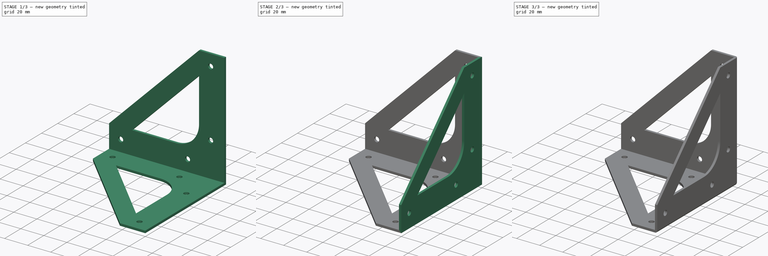
[diagram: build sequence overview — one tinted view per stage of 3, left to right]
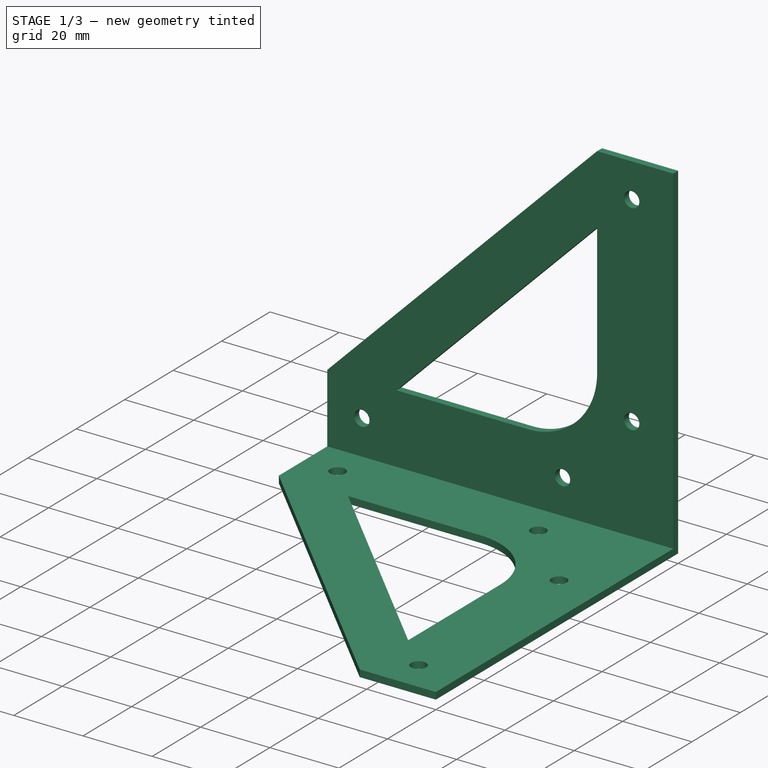
[diagram: stage 1 of 3 — iso view after this stage's code; geometry added in this stage tinted green]
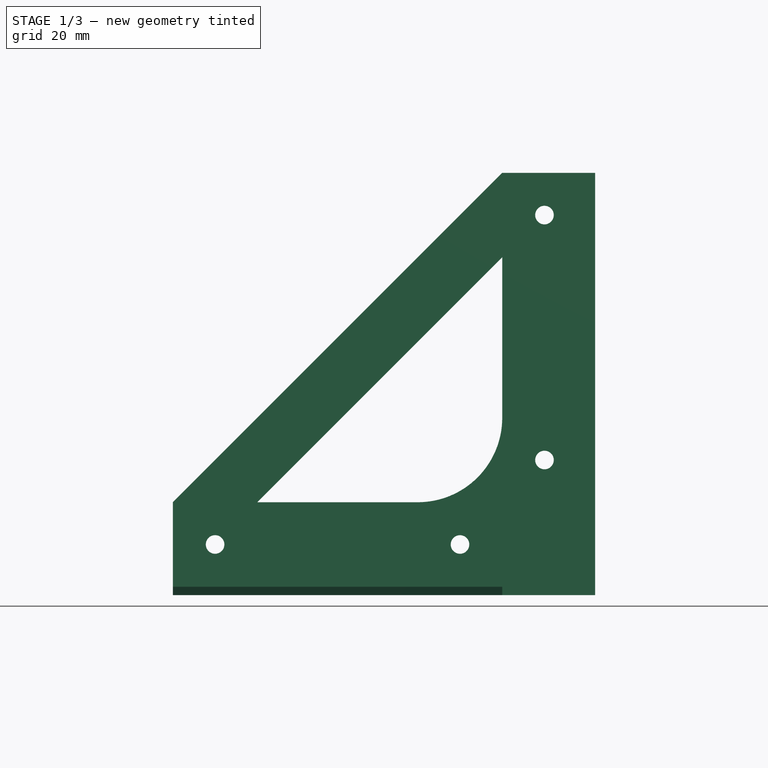
[diagram: stage 1 of 3 — front view after this stage's code; geometry added in this stage tinted green]
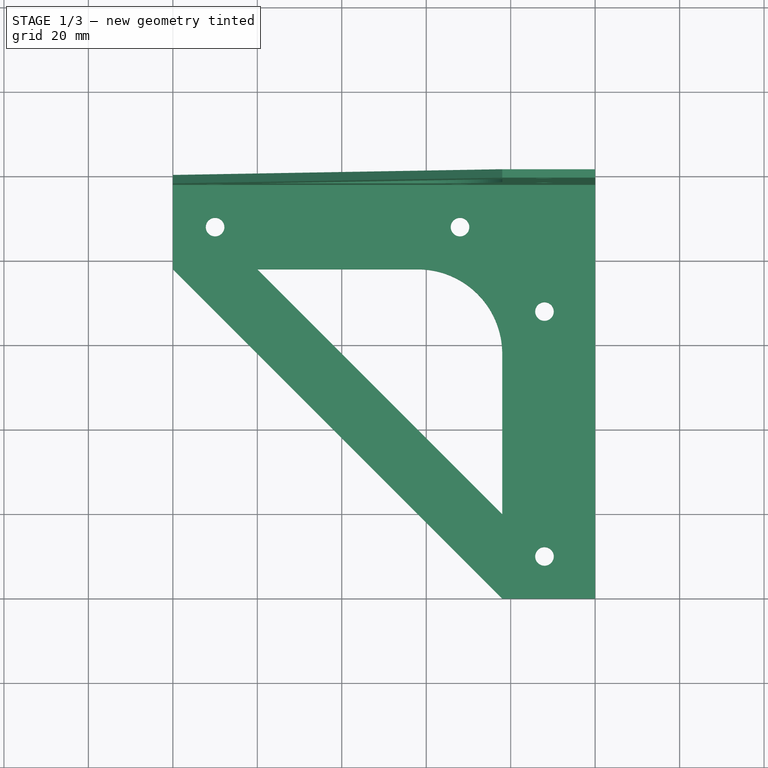
[diagram: stage 1 of 3 — top view after this stage's code; geometry added in this stage tinted green]
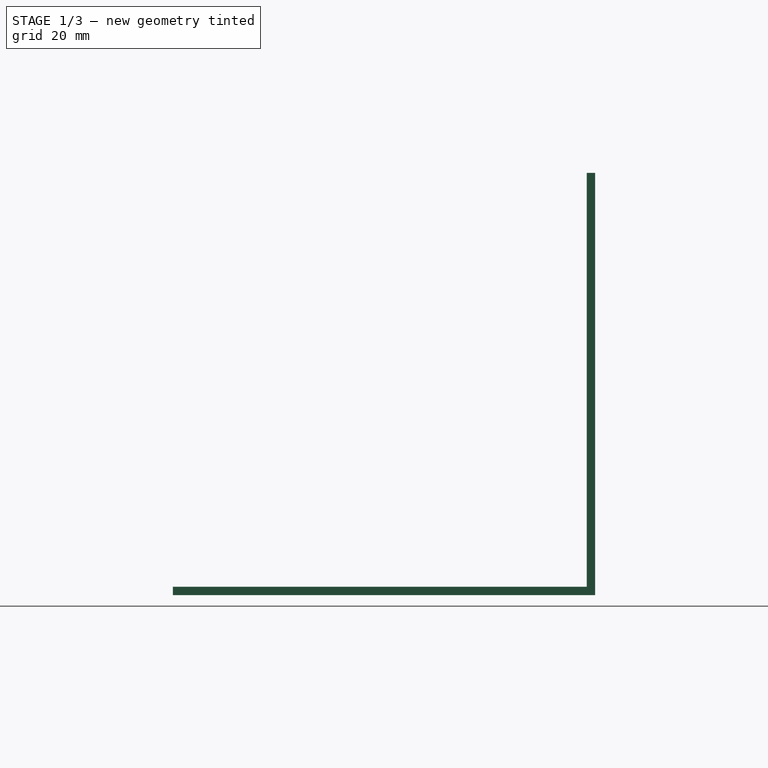
[diagram: stage 1 of 3 — right view after this stage's code; geometry added in this stage tinted green]
FCSTD DOCUMENT  (FreeCAD 0.17R13541 (Git))
Label: corner
License: All rights reserved
LicenseURL: http://en.wikipedia.org/wiki/All_rights_reserved
objects: Sketcher::SketchObject×3, PartDesign::Pad×3, PartDesign::Body×2, Part::MultiFuse×1, PartDesign::FeatureBase×1, PartDesign::Fillet×1
note: 14 computed .brp shape members not serialized (recipe doc carries the construction recipe); baked Part::Feature solids carry a one-line shape summary decoded from their .brp

FEATURE [Sketcher::SketchObject] Sketch
  MapMode = 5
  Support = -> [XY_Plane]
  sketch-geometry (31):
    g0: LineSegment StartX=0 StartY=0 StartZ=0 EndX=-100 EndY=0 EndZ=0
    g1: LineSegment StartX=0 StartY=-100 StartZ=0 EndX=0 EndY=0 EndZ=0
    g2: LineSegment StartX=-100 StartY=-22 StartZ=0 EndX=-22 EndY=-100 EndZ=0
    g3: LineSegment [constr] StartX=-100 StartY=-2 StartZ=0 EndX=-2 EndY=-2 EndZ=0
    g4: LineSegment [constr] StartX=-2 StartY=-100 StartZ=0 EndX=-2 EndY=-2 EndZ=0
    g5: LineSegment [constr] StartX=-2 StartY=-2 StartZ=0 EndX=-2 EndY=0 EndZ=0
    g6: LineSegment [constr] StartX=-2 StartY=-2 StartZ=0 EndX=0 EndY=-2 EndZ=0
    g7: LineSegment [constr] StartX=-90 StartY=-12 StartZ=0 EndX=-32 EndY=-12 EndZ=0
    g8: LineSegment [constr] StartX=-12 StartY=-90 StartZ=0 EndX=-12 EndY=-32 EndZ=0
    g9: Circle CenterX=-90 CenterY=-12 CenterZ=0 NormalX=0 NormalY=0 NormalZ=1 AngleXU=0 Radius=2.2
    g10: LineSegment [constr] StartX=-100 StartY=-12 StartZ=0 EndX=-90 EndY=-12 EndZ=0
    g11: LineSegment [constr] StartX=-12 StartY=-90 StartZ=0 EndX=-12 EndY=-100 EndZ=0
    g12: Circle CenterX=-12 CenterY=-90 CenterZ=0 NormalX=0 NormalY=0 NormalZ=1 AngleXU=0 Radius=2.2
    g13: Circle CenterX=-32 CenterY=-12 CenterZ=0 NormalX=0 NormalY=0 NormalZ=1 AngleXU=0 Radius=2.2
    g14: Circle CenterX=-12 CenterY=-32 CenterZ=0 NormalX=0 NormalY=0 NormalZ=1 AngleXU=0 Radius=2.2
    g15: LineSegment [constr] StartX=-32 StartY=-12 StartZ=0 EndX=-12 EndY=-12 EndZ=0
    g16: LineSegment [constr] StartX=-12 StartY=-12 StartZ=0 EndX=-2 EndY=-12 EndZ=0
    g17: LineSegment [constr] StartX=-12 StartY=-32 StartZ=0 EndX=-12 EndY=-12 EndZ=0
    g18: LineSegment [constr] StartX=-12 StartY=-12 StartZ=0 EndX=-12 EndY=-2 EndZ=0
    g19: LineSegment StartX=-80 StartY=-22 StartZ=0 EndX=-22 EndY=-80 EndZ=0
    g20: LineSegment StartX=-22 StartY=-80 StartZ=0 EndX=-22 EndY=-42 EndZ=0
    g21: LineSegment StartX=-42 StartY=-22 StartZ=0 EndX=-80 EndY=-22 EndZ=0
    g22: LineSegment [constr] StartX=-100 StartY=-22 StartZ=0 EndX=-80 EndY=-22 EndZ=0
    g23: LineSegment [constr] StartX=-22 StartY=-100 StartZ=0 EndX=-22 EndY=-80 EndZ=0
    g24: ArcOfCircle CenterX=-42 CenterY=-42 CenterZ=0 NormalX=0 NormalY=0 NormalZ=1 AngleXU=0 Radius=20 StartAngle=0 EndAngle=1.5708
    g25: LineSegment [constr] StartX=-42 StartY=-22 StartZ=0 EndX=-42 EndY=-42 EndZ=0
    g26: LineSegment [constr] StartX=-42 StartY=-42 StartZ=0 EndX=-22 EndY=-42 EndZ=0
    g27: LineSegment StartX=-100 StartY=0 StartZ=0 EndX=-100 EndY=-2 EndZ=0
    g28: LineSegment StartX=-100 StartY=-2 StartZ=0 EndX=-100 EndY=-22 EndZ=0
    g29: LineSegment StartX=-22 StartY=-100 StartZ=0 EndX=-2 EndY=-100 EndZ=0
    g30: LineSegment StartX=-2 StartY=-100 StartZ=0 EndX=0 EndY=-100 EndZ=0
  constraints (84):
    c: Coincident(g-1,g0)
    c: Horizontal(g0)
    c: Coincident(g1,g0)
    c: Vertical(g1)
    c: Equal(g0,g1)
    c: Horizontal(g3)
    c: Vertical(g4)
    c: Coincident(g3,g4)
    c: Coincident(g5,g3)
    c: PointOnObject(g5,g0)
    c: Vertical(g5)
    c: Coincident(g6,g3)
    c: PointOnObject(g6,g1)
    c: Horizontal(g6)
    c: Equal(g5,g6)
    c: DistanceY(g5,g5) = 2  'Thickness'
    c: Horizontal(g7)
    c: Vertical(g8)
    c: Symmetric(g2,g3,g7)
    c: Symmetric(g2,g4,g8)
    c: PointOnObject(g9,g7)
    c: Radius(g9) = 2.2
    c: Coincident(g7,g9)
    c: Coincident(g10,g7)
    c: Horizontal(g10)
    c: DistanceX(g10,g10) = 10  'ScrewDistanceEnd'
    c: Coincident(g11,g8)
    c: Vertical(g11)
    c: Equal(g10,g11)
    c: Coincident(g12,g8)
    c: Equal(g12,g9)
    c: Coincident(g13,g7)
    c: Equal(g13,g9)
    c: Equal(g14,g12)
    c: Coincident(g8,g14)
    c: Coincident(g15,g7)
    c: Horizontal(g15)
    c: Coincident(g16,g15)
    c: PointOnObject(g16,g4)
    c: Horizontal(g16)
    c: Coincident(g17,g8)
    c: Coincident(g17,g15)
    c: Vertical(g17)
    c: Coincident(g18,g15)
    c: PointOnObject(g18,g3)
    c: Vertical(g18)
    c: DistanceX(g15,g15) = 20  'ScrewDistanceMiddle'
    c: Equal(g15,g17)
    c: DistanceX(g0,g5) = 98  'Length'
    c: Coincident(g19,g20)
    c: Vertical(g20)
    c: Coincident(g21,g19)
    c: Horizontal(g21)
    c: Coincident(g22,g19)
    c: Horizontal(g22)
    c: Coincident(g23,g19)
    c: Vertical(g23)
    c: Equal(g22,g23)
    c: Equal(g21,g20)
    c: Coincident(g24,g21)
    c: Coincident(g24,g20)
    c: Coincident(g21,g25)
    c: Coincident(g25,g24)
    c: Vertical(g25)
    c: Coincident(g25,g26)
    c: Coincident(g26,g20)
    c: Radius(g24) = 20
    c: Coincident(g0,g27)
    c: Coincident(g27,g3)
    c: Vertical(g27)
    c: Coincident(g27,g28)
    c: Coincident(g28,g2)
    c: Coincident(g29,g2)
    c: Coincident(g29,g4)
    c: Coincident(g30,g4)
    c: Coincident(g30,g1)
    c: PointOnObject(g11,g29)
    c: Horizontal(g30)
    c: PointOnObject(g10,g28)
    c: Coincident(g2,g23)
    c: Coincident(g2,g22)
    c: Horizontal(g26)
    c: DistanceY(g28,g28) = 20  'ExtrusionSize'
    c: Equal(g28,g22)
FEATURE [PartDesign::Pad] Pad
  Length = 2
  Length2 = 100
  Profile = -> Sketch
  Type = 0
  expr: Length = Sketch.Constraints.Thickness
FEATURE [Sketcher::SketchObject] Sketch001
  AttachmentOffset = pos=(0,0,0) rot=(1,0,0;4.71239rad)
  MapMode = 5
  Placement = pos=(0,0,0) rot=(1,0,0;4.71239rad)
  Support = -> [XY_Plane]
  expr: Constraints[46] = Sketch.Constraints.ScrewDistanceMiddle
  expr: Constraints[25] = Sketch.Constraints.ScrewDistanceEnd
  expr: Constraints[83] = Sketch.Constraints.ExtrusionSize
  expr: Constraints[48] = Sketch.Constraints.Length
  expr: Constraints.Thickness = Sketch.Constraints.Thickness
  sketch-geometry (31):
    g0: LineSegment StartX=0 StartY=0 StartZ=0 EndX=-100 EndY=0 EndZ=0
    g1: LineSegment StartX=0 StartY=-100 StartZ=0 EndX=0 EndY=0 EndZ=0
    g2: LineSegment StartX=-100 StartY=-22 StartZ=0 EndX=-22 EndY=-100 EndZ=0
    g3: LineSegment [constr] StartX=-100 StartY=-2 StartZ=0 EndX=-2 EndY=-2 EndZ=0
    g4: LineSegment [constr] StartX=-2 StartY=-100 StartZ=0 EndX=-2 EndY=-2 EndZ=0
    g5: LineSegment [constr] StartX=-2 StartY=-2 StartZ=0 EndX=-2 EndY=0 EndZ=0
    g6: LineSegment [constr] StartX=-2 StartY=-2 StartZ=0 EndX=0 EndY=-2 EndZ=0
    g7: LineSegment [constr] StartX=-90 StartY=-12 StartZ=0 EndX=-32 EndY=-12 EndZ=0
    g8: LineSegment [constr] StartX=-12 StartY=-90 StartZ=0 EndX=-12 EndY=-32 EndZ=0
    g9: Circle CenterX=-90 CenterY=-12 CenterZ=0 NormalX=0 NormalY=0 NormalZ=1 AngleXU=0 Radius=2.2
    g10: LineSegment [constr] StartX=-100 StartY=-12 StartZ=0 EndX=-90 EndY=-12 EndZ=0
    g11: LineSegment [constr] StartX=-12 StartY=-90 StartZ=0 EndX=-12 EndY=-100 EndZ=0
    g12: Circle CenterX=-12 CenterY=-90 CenterZ=0 NormalX=0 NormalY=0 NormalZ=1 AngleXU=0 Radius=2.2
    g13: Circle CenterX=-32 CenterY=-12 CenterZ=0 NormalX=0 NormalY=0 NormalZ=1 AngleXU=0 Radius=2.2
    g14: Circle CenterX=-12 CenterY=-32 CenterZ=0 NormalX=0 NormalY=0 NormalZ=1 AngleXU=0 Radius=2.2
    g15: LineSegment [constr] StartX=-32 StartY=-12 StartZ=0 EndX=-12 EndY=-12 EndZ=0
    g16: LineSegment [constr] StartX=-12 StartY=-12 StartZ=0 EndX=-2 EndY=-12 EndZ=0
    g17: LineSegment [constr] StartX=-12 StartY=-32 StartZ=0 EndX=-12 EndY=-12 EndZ=0
    g18: LineSegment [constr] StartX=-12 StartY=-12 StartZ=0 EndX=-12 EndY=-2 EndZ=0
    g19: LineSegment [constr] StartX=-100 StartY=-22 StartZ=0 EndX=-80 EndY=-22 EndZ=0
    g20: LineSegment [constr] StartX=-22 StartY=-100 StartZ=0 EndX=-22 EndY=-80 EndZ=0
    g21: LineSegment StartX=-80 StartY=-22 StartZ=0 EndX=-22 EndY=-80 EndZ=0
    g22: LineSegment StartX=-22 StartY=-80 StartZ=0 EndX=-22 EndY=-42 EndZ=0
    g23: LineSegment StartX=-42 StartY=-22 StartZ=0 EndX=-80 EndY=-22 EndZ=0
    g24: ArcOfCircle CenterX=-42 CenterY=-42 CenterZ=0 NormalX=0 NormalY=0 NormalZ=1 AngleXU=0 Radius=20 StartAngle=0 EndAngle=1.5708
    g25: LineSegment [constr] StartX=-42 StartY=-22 StartZ=0 EndX=-42 EndY=-42 EndZ=0
    g26: LineSegment [constr] StartX=-42 StartY=-42 StartZ=0 EndX=-22 EndY=-42 EndZ=0
    g27: LineSegment StartX=-100 StartY=0 StartZ=0 EndX=-100 EndY=-2 EndZ=0
    g28: LineSegment StartX=-100 StartY=-2 StartZ=0 EndX=-100 EndY=-22 EndZ=0
    g29: LineSegment StartX=-22 StartY=-100 StartZ=0 EndX=-2 EndY=-100 EndZ=0
    g30: LineSegment StartX=-2 StartY=-100 StartZ=0 EndX=0 EndY=-100 EndZ=0
  constraints (84):
    c: Coincident(g-1,g0)
    c: Horizontal(g0)
    c: Coincident(g1,g0)
    c: Vertical(g1)
    c: Equal(g0,g1)
    c: Horizontal(g3)
    c: Vertical(g4)
    c: Coincident(g3,g4)
    c: Coincident(g5,g3)
    c: PointOnObject(g5,g0)
    c: Vertical(g5)
    c: Coincident(g6,g3)
    c: PointOnObject(g6,g1)
    c: Horizontal(g6)
    c: Equal(g5,g6)
    c: DistanceY(g5,g5) = 2  'Thickness'
    c: Horizontal(g7)
    c: Vertical(g8)
    c: Symmetric(g2,g3,g7)
    c: Symmetric(g2,g4,g8)
    c: PointOnObject(g9,g7)
    c: Radius(g9) = 2.2
    c: Coincident(g7,g9)
    c: Coincident(g10,g7)
    c: Horizontal(g10)
    c: DistanceX(g10,g10) = 10
    c: Coincident(g11,g8)
    c: Vertical(g11)
    c: Equal(g10,g11)
    c: Coincident(g12,g8)
    c: Equal(g12,g9)
    c: Coincident(g13,g7)
    c: Equal(g13,g9)
    c: Equal(g14,g12)
    c: Coincident(g8,g14)
    c: Coincident(g15,g7)
    c: Horizontal(g15)
    c: Coincident(g16,g15)
    c: PointOnObject(g16,g4)
    c: Horizontal(g16)
    c: Coincident(g17,g8)
    c: Coincident(g17,g15)
    c: Vertical(g17)
    c: Coincident(g18,g15)
    c: PointOnObject(g18,g3)
    c: Vertical(g18)
    c: DistanceX(g15,g15) = 20
    c: Equal(g15,g17)
    c: DistanceX(g0,g5) = 98
    c: Horizontal(g19)
    c: Vertical(g20)
    c: Equal(g19,g20)
    c: Coincident(g19,g21)
    c: Coincident(g21,g20)
    c: Coincident(g21,g22)
    c: Vertical(g22)
    c: Horizontal(g23)
    c: Coincident(g19,g23)
    c: DistanceX(g19,g19) = 20
    c: Coincident(g24,g23)
    c: Coincident(g24,g22)
    c: Coincident(g23,g25)
    c: Coincident(g25,g24)
    c: Coincident(g25,g26)
    c: Coincident(g26,g22)
    c: Horizontal(g26)
    c: Vertical(g25)
    c: Radius(g24) = 20
    c: Coincident(g2,g19)
    c: Coincident(g2,g20)
    c: Coincident(g0,g27)
    c: Coincident(g27,g3)
    c: Vertical(g27)
    c: Coincident(g27,g28)
    c: Coincident(g28,g2)
    c: Coincident(g2,g29)
    c: Coincident(g29,g4)
    c: Coincident(g29,g30)
    c: Coincident(g30,g1)
    c: Horizontal(g30)
    c: PointOnObject(g10,g28)
    c: PointOnObject(g11,g29)
    c: Equal(g29,g28)
    c: DistanceY(g28,g28) = 20
FEATURE [Sketcher::SketchObject] Sketch002
  AttachmentOffset = pos=(0,0,0) rot=(0,1,0;1.5708rad)
  MapMode = 5
  Placement = pos=(0,0,0) rot=(0,1,0;1.5708rad)
  Support = -> [XY_Plane]
  expr: Constraints[46] = Sketch.Constraints.ScrewDistanceMiddle
  expr: Constraints[25] = Sketch.Constraints.ScrewDistanceEnd
  expr: Constraints[83] = Sketch.Constraints.ExtrusionSize
  expr: Constraints[48] = Sketch.Constraints.Length
  expr: Constraints.Thickness = Sketch.Constraints.Thickness
  sketch-geometry (31):
    g0: LineSegment StartX=0 StartY=0 StartZ=0 EndX=-100 EndY=0 EndZ=0
    g1: LineSegment StartX=0 StartY=-100 StartZ=0 EndX=0 EndY=0 EndZ=0
    g2: LineSegment StartX=-100 StartY=-22 StartZ=0 EndX=-22 EndY=-100 EndZ=0
    g3: LineSegment [constr] StartX=-100 StartY=-2 StartZ=0 EndX=-2 EndY=-2 EndZ=0
    g4: LineSegment [constr] StartX=-2 StartY=-100 StartZ=0 EndX=-2 EndY=-2 EndZ=0
    g5: LineSegment [constr] StartX=-2 StartY=-2 StartZ=0 EndX=-2 EndY=0 EndZ=0
    g6: LineSegment [constr] StartX=-2 StartY=-2 StartZ=0 EndX=0 EndY=-2 EndZ=0
    g7: LineSegment [constr] StartX=-90 StartY=-12 StartZ=0 EndX=-32 EndY=-12 EndZ=0
    g8: LineSegment [constr] StartX=-12 StartY=-90 StartZ=0 EndX=-12 EndY=-32 EndZ=0
    g9: Circle CenterX=-90 CenterY=-12 CenterZ=0 NormalX=0 NormalY=0 NormalZ=1 AngleXU=0 Radius=2.2
    g10: LineSegment [constr] StartX=-100 StartY=-12 StartZ=0 EndX=-90 EndY=-12 EndZ=0
    g11: LineSegment [constr] StartX=-12 StartY=-90 StartZ=0 EndX=-12 EndY=-100 EndZ=0
    g12: Circle CenterX=-12 CenterY=-90 CenterZ=0 NormalX=0 NormalY=0 NormalZ=1 AngleXU=0 Radius=2.2
    g13: Circle CenterX=-32 CenterY=-12 CenterZ=0 NormalX=0 NormalY=0 NormalZ=1 AngleXU=0 Radius=2.2
    g14: Circle CenterX=-12 CenterY=-32 CenterZ=0 NormalX=0 NormalY=0 NormalZ=1 AngleXU=0 Radius=2.2
    g15: LineSegment [constr] StartX=-32 StartY=-12 StartZ=0 EndX=-12 EndY=-12 EndZ=0
    g16: LineSegment [constr] StartX=-12 StartY=-12 StartZ=0 EndX=-2 EndY=-12 EndZ=0
    g17: LineSegment [constr] StartX=-12 StartY=-32 StartZ=0 EndX=-12 EndY=-12 EndZ=0
    g18: LineSegment [constr] StartX=-12 StartY=-12 StartZ=0 EndX=-12 EndY=-2 EndZ=0
    g19: LineSegment [constr] StartX=-100 StartY=-22 StartZ=0 EndX=-80 EndY=-22 EndZ=0
    g20: LineSegment [constr] StartX=-22 StartY=-100 StartZ=0 EndX=-22 EndY=-80 EndZ=0
    g21: LineSegment StartX=-42 StartY=-22 StartZ=0 EndX=-80 EndY=-22 EndZ=0
    g22: LineSegment StartX=-80 StartY=-22 StartZ=0 EndX=-22 EndY=-80 EndZ=0
    g23: LineSegment StartX=-22 StartY=-80 StartZ=0 EndX=-22 EndY=-42 EndZ=0
    g24: ArcOfCircle CenterX=-42 CenterY=-42 CenterZ=0 NormalX=0 NormalY=0 NormalZ=1 AngleXU=0 Radius=20 StartAngle=0 EndAngle=1.5708
    g25: LineSegment [constr] StartX=-42 StartY=-22 StartZ=0 EndX=-42 EndY=-42 EndZ=0
    g26: LineSegment [constr] StartX=-42 StartY=-42 StartZ=0 EndX=-22 EndY=-42 EndZ=0
    g27: LineSegment StartX=-22 StartY=-100 StartZ=0 EndX=-2 EndY=-100 EndZ=0
    g28: LineSegment StartX=-2 StartY=-100 StartZ=0 EndX=0 EndY=-100 EndZ=0
    g29: LineSegment StartX=-100 StartY=-22 StartZ=0 EndX=-100 EndY=-2 EndZ=0
    g30: LineSegment StartX=-100 StartY=-2 StartZ=0 EndX=-100 EndY=0 EndZ=0
  constraints (84):
    c: Coincident(g-1,g0)
    c: Horizontal(g0)
    c: Coincident(g1,g0)
    c: Vertical(g1)
    c: Equal(g0,g1)
    c: Horizontal(g3)
    c: Vertical(g4)
    c: Coincident(g3,g4)
    c: Coincident(g5,g3)
    c: PointOnObject(g5,g0)
    c: Vertical(g5)
    c: Coincident(g6,g3)
    c: PointOnObject(g6,g1)
    c: Horizontal(g6)
    c: Equal(g5,g6)
    c: DistanceY(g5,g5) = 2  'Thickness'
    c: Horizontal(g7)
    c: Vertical(g8)
    c: Symmetric(g2,g3,g7)
    c: Symmetric(g2,g4,g8)
    c: PointOnObject(g9,g7)
    c: Radius(g9) = 2.2
    c: Coincident(g7,g9)
    c: Coincident(g10,g7)
    c: Horizontal(g10)
    c: DistanceX(g10,g10) = 10
    c: Coincident(g11,g8)
    c: Vertical(g11)
    c: Equal(g10,g11)
    c: Coincident(g12,g8)
    c: Equal(g12,g9)
    c: Coincident(g13,g7)
    c: Equal(g13,g9)
    c: Equal(g14,g12)
    c: Coincident(g8,g14)
    c: Coincident(g15,g7)
    c: Horizontal(g15)
    c: Coincident(g16,g15)
    c: PointOnObject(g16,g4)
    c: Horizontal(g16)
    c: Coincident(g17,g8)
    c: Coincident(g17,g15)
    c: Vertical(g17)
    c: Coincident(g18,g15)
    c: PointOnObject(g18,g3)
    c: Vertical(g18)
    c: DistanceX(g15,g15) = 20
    c: Equal(g15,g17)
    c: DistanceX(g0,g5) = 98
    c: Horizontal(g19)
    c: Vertical(g20)
    c: Equal(g20,g19)
    c: DistanceX(g19,g19) = 20
    c: Coincident(g21,g19)
    c: Horizontal(g21)
    c: Coincident(g21,g22)
    c: Coincident(g22,g20)
    c: Coincident(g22,g23)
    c: Vertical(g23)
    c: Coincident(g24,g23)
    c: Coincident(g24,g21)
    c: Coincident(g21,g25)
    c: Coincident(g25,g24)
    c: Vertical(g25)
    c: Coincident(g25,g26)
    c: Coincident(g26,g23)
    c: Horizontal(g26)
    c: Radius(g24) = 20
    c: Coincident(g2,g27)
    c: Coincident(g27,g4)
    c: Coincident(g27,g28)
    c: Coincident(g28,g1)
    c: Horizontal(g28)
    c: Coincident(g2,g29)
    c: Coincident(g29,g3)
    c: Coincident(g29,g30)
    c: Coincident(g30,g0)
    c: Vertical(g30)
    c: PointOnObject(g10,g29)
    c: PointOnObject(g11,g27)
    c: Coincident(g2,g20)
    c: Equal(g29,g27)
    c: Coincident(g2,g19)
    c: DistanceY(g29,g29) = 20
FEATURE [PartDesign::Pad] Pad001
  BaseFeature = -> Pad
  Length = 2
  Length2 = 100
  Profile = -> Sketch001
  Reversed = true
  Type = 0
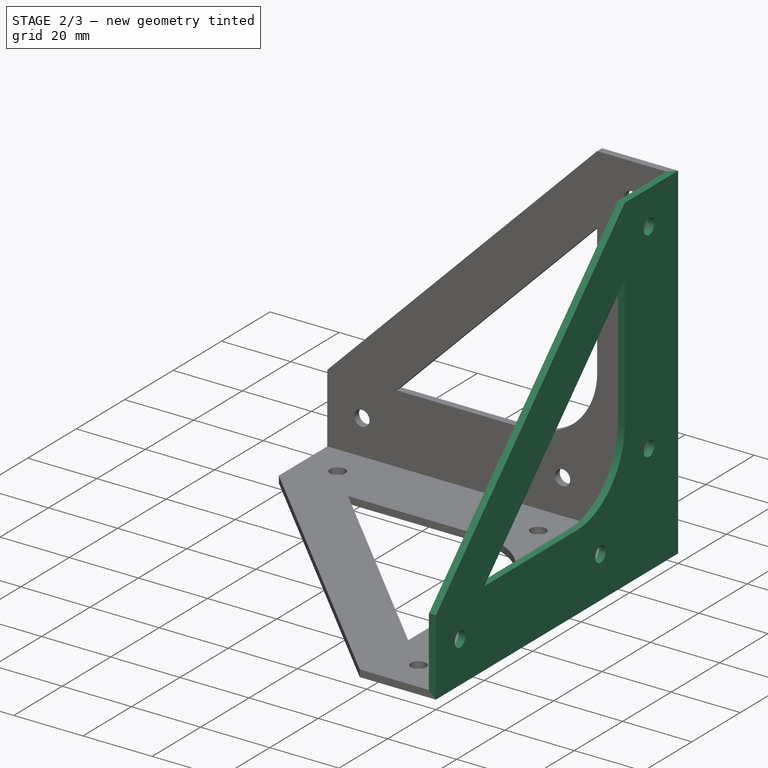
[diagram: stage 2 of 3 — iso view after this stage's code; geometry added in this stage tinted green]
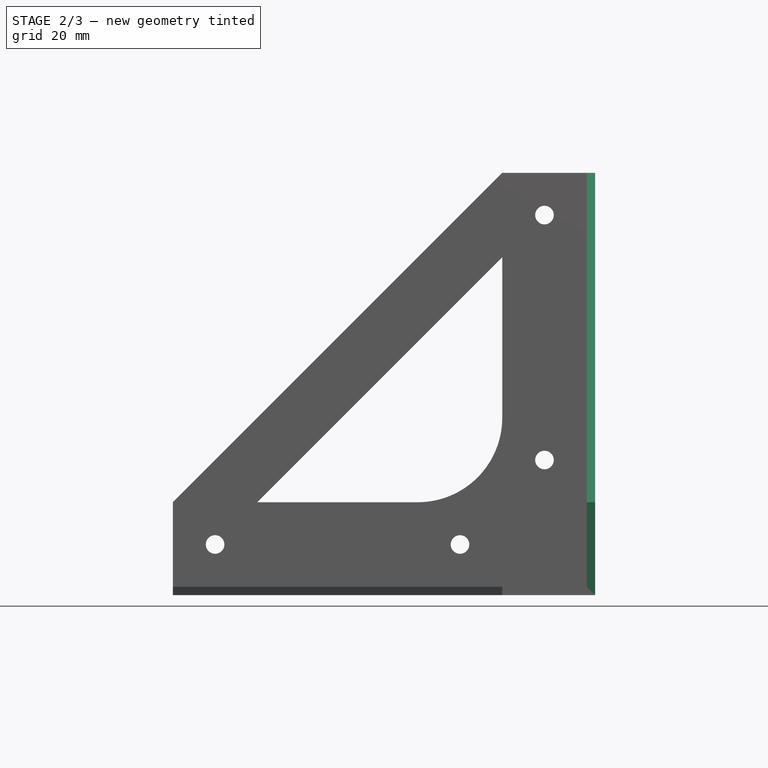
[diagram: stage 2 of 3 — front view after this stage's code; geometry added in this stage tinted green]
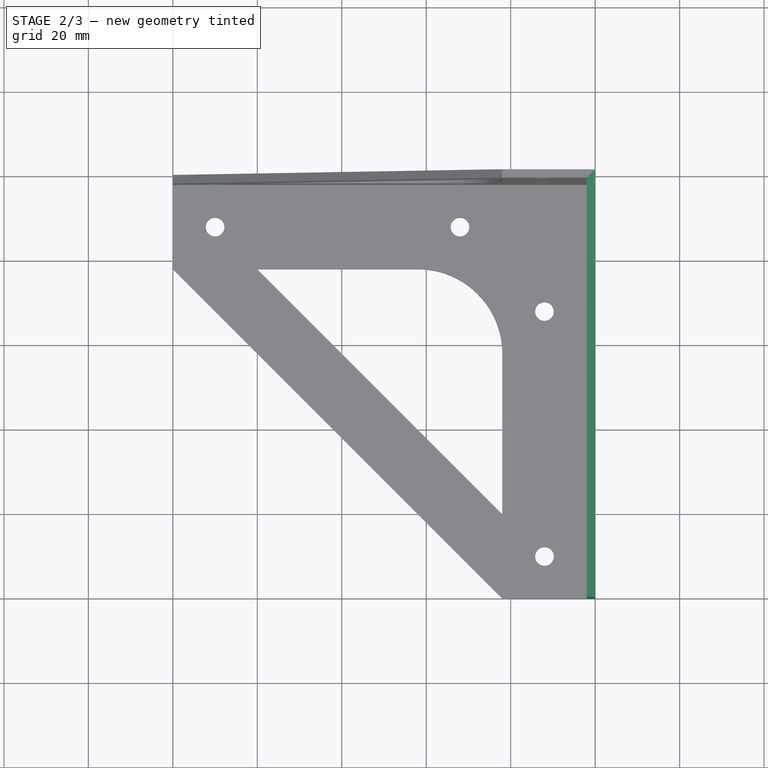
[diagram: stage 2 of 3 — top view after this stage's code; geometry added in this stage tinted green]
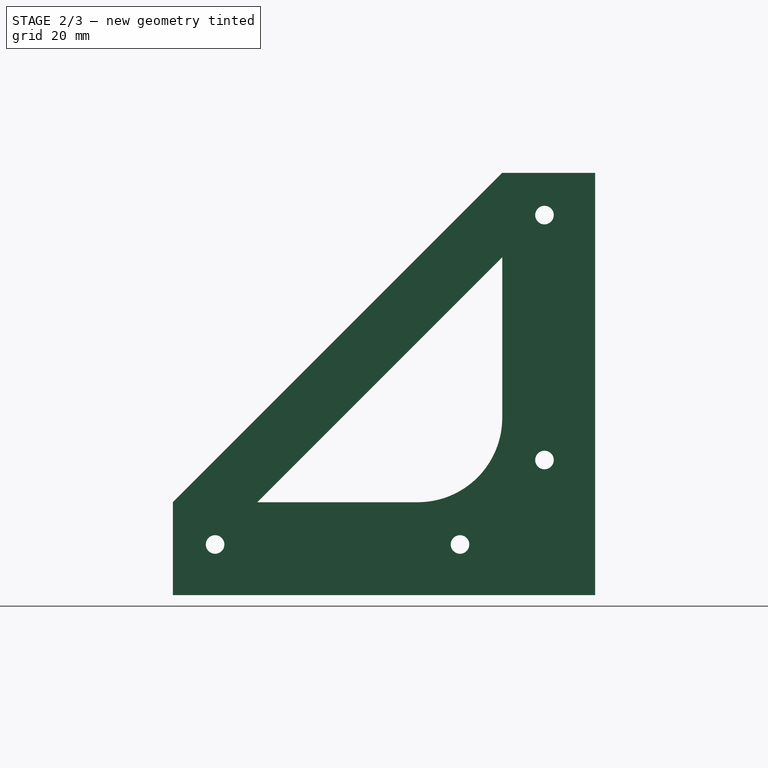
[diagram: stage 2 of 3 — right view after this stage's code; geometry added in this stage tinted green]
FEATURE [PartDesign::Pad] Pad002
  BaseFeature = -> Pad001
  Length = 2
  Length2 = 100
  Profile = -> Sketch002
  Reversed = true
  Type = 0
  expr: Length = Sketch.Constraints.Thickness
FEATURE [PartDesign::Body] Body
  Group = -> [Sketch,Pad,Sketch001,Sketch002,Pad001,Pad002]
  Origin = -> Origin
  Tip = -> Pad002
FEATURE [Part::MultiFuse] Fusion
  Refine = true
  Shapes = -> [Pad002,Pad,Pad001]
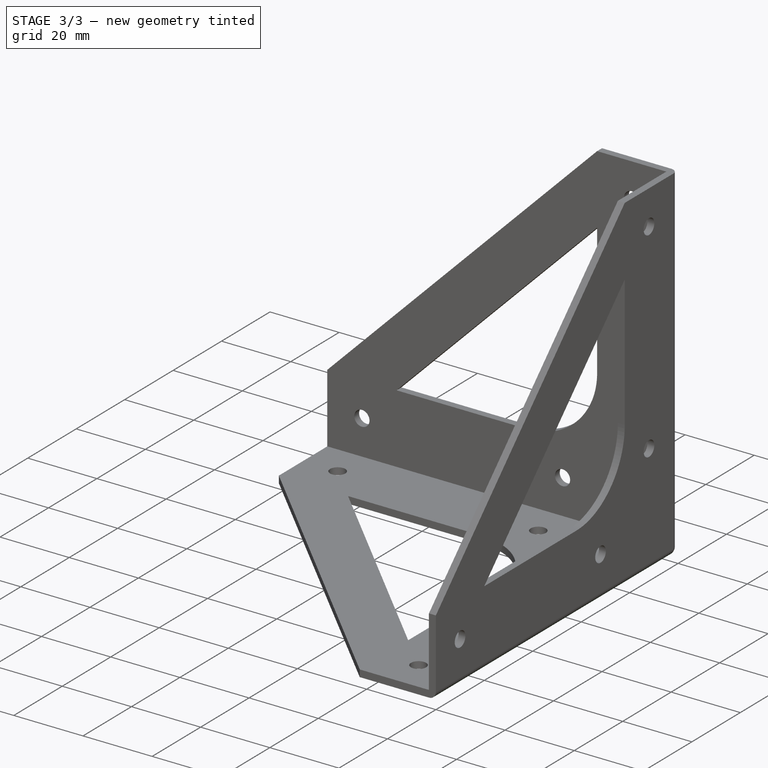
[diagram: stage 3 of 3 — iso view after this stage's code; geometry added in this stage tinted green]
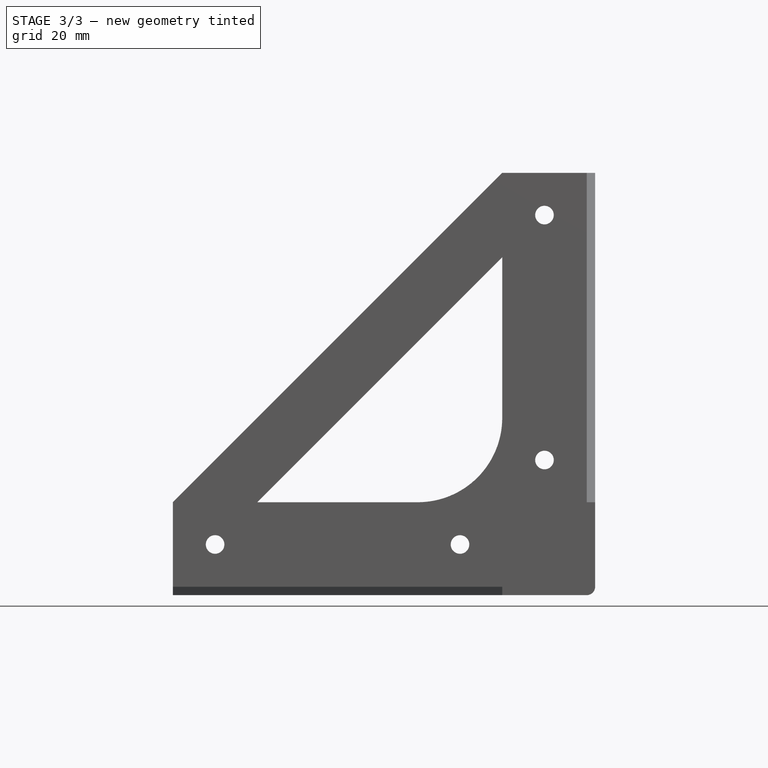
[diagram: stage 3 of 3 — front view after this stage's code; geometry added in this stage tinted green]
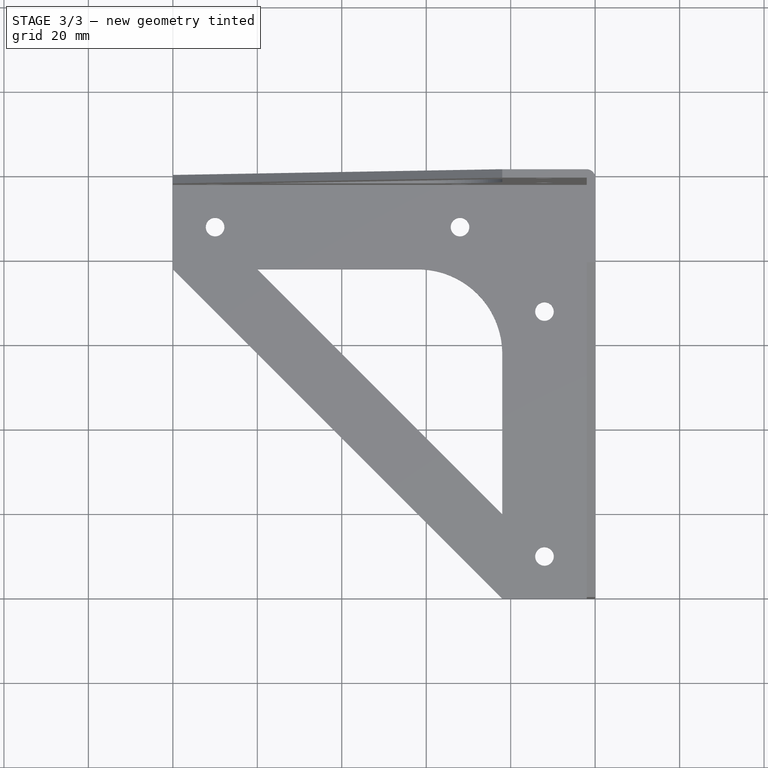
[diagram: stage 3 of 3 — top view after this stage's code; geometry added in this stage tinted green]
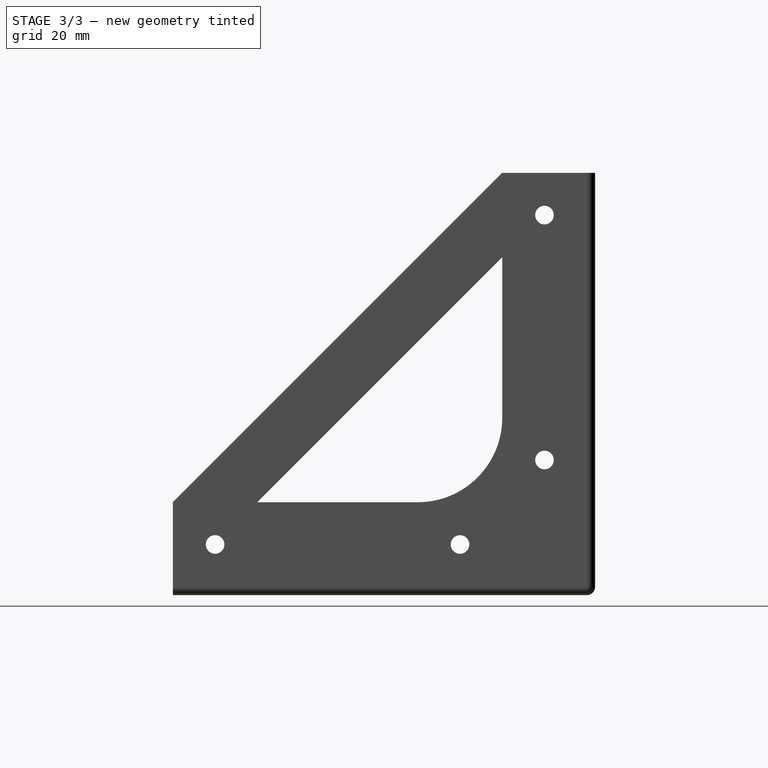
[diagram: stage 3 of 3 — right view after this stage's code; geometry added in this stage tinted green]
FEATURE [PartDesign::FeatureBase] BaseFeature
  BaseFeature = -> Fusion
FEATURE [PartDesign::Fillet] Fillet
  Base = -> BaseFeature [Edge97,Edge98,Edge94]
  BaseFeature = -> BaseFeature
  Radius = 2
  expr: Radius = Sketch.Constraints.Thickness
FEATURE [PartDesign::Body] Body001
  BaseFeature = -> Fusion
  Group = -> [BaseFeature,Fillet]
  Origin = -> Origin001
  Tip = -> Fillet
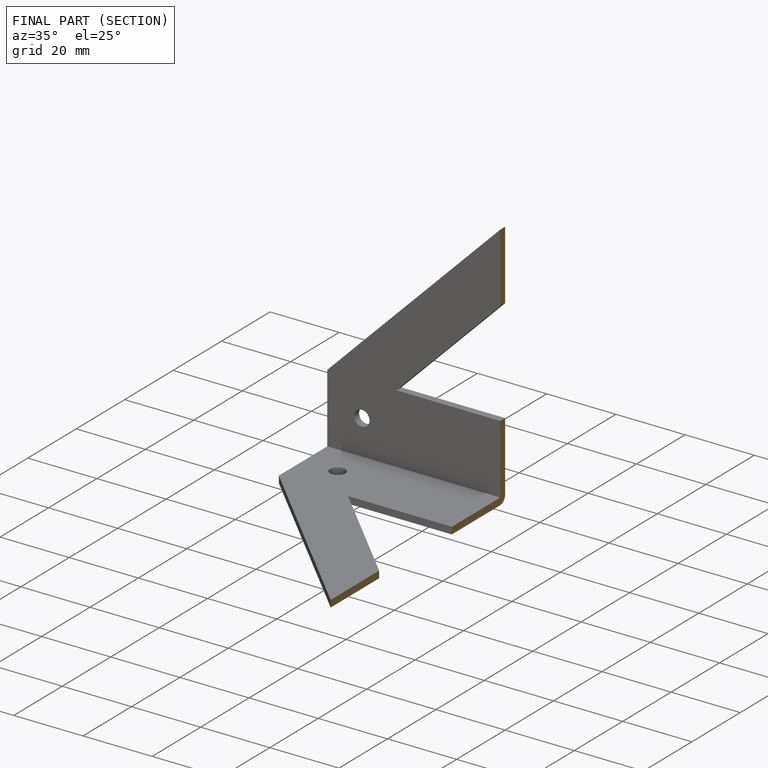
[diagram: finished part — half-section view (interior)]
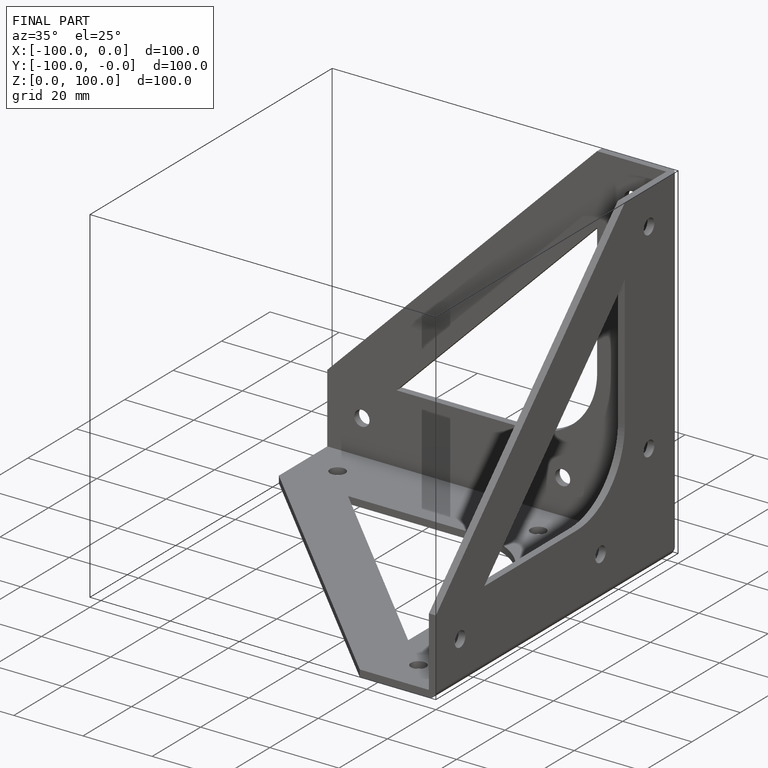
[diagram: finished part — iso view with bounding-box wireframe]
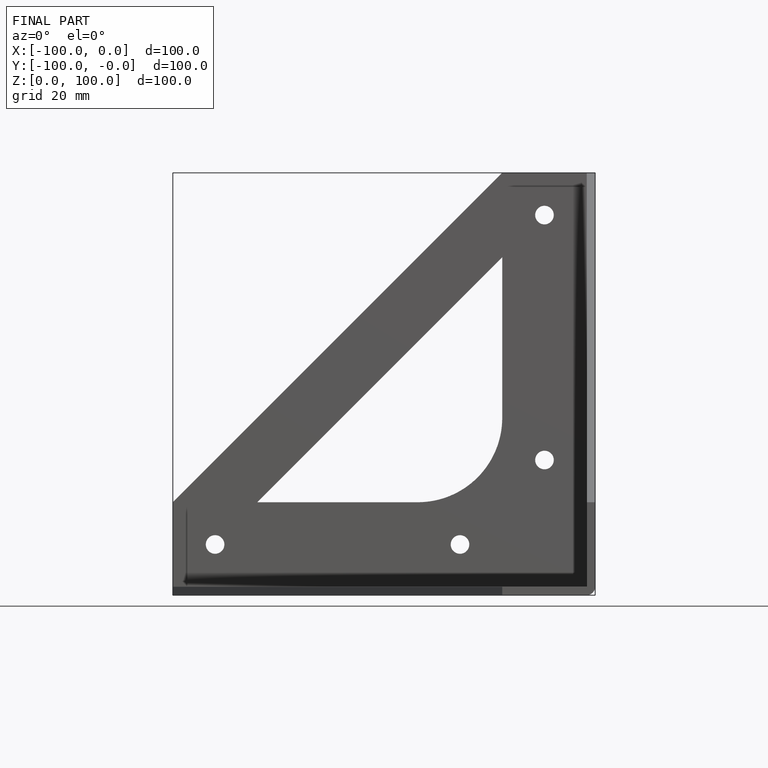
[diagram: finished part — front view with bounding-box wireframe]
